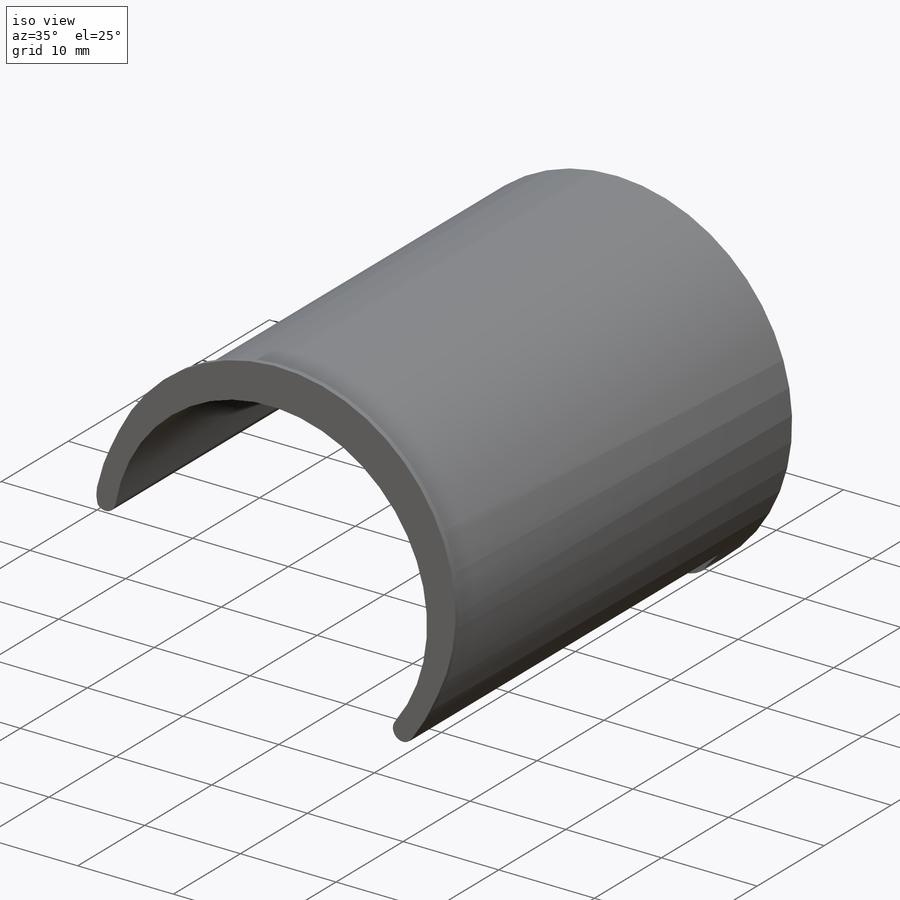
[diagram: iso view]
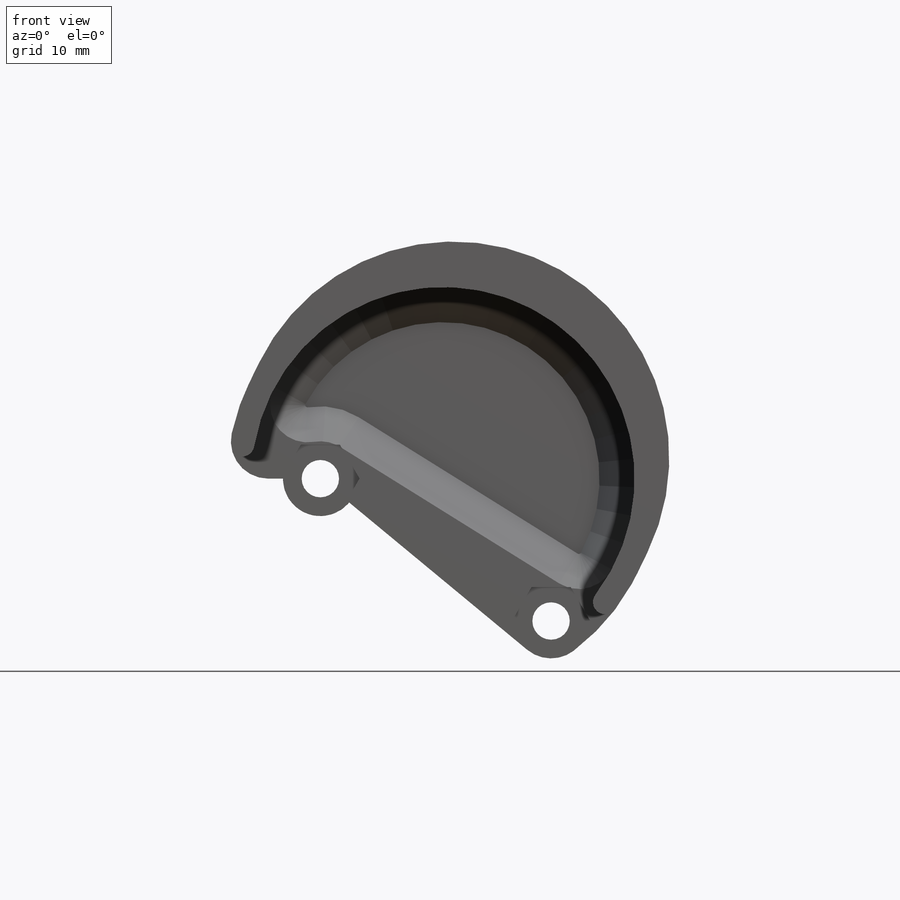
[diagram: front view]
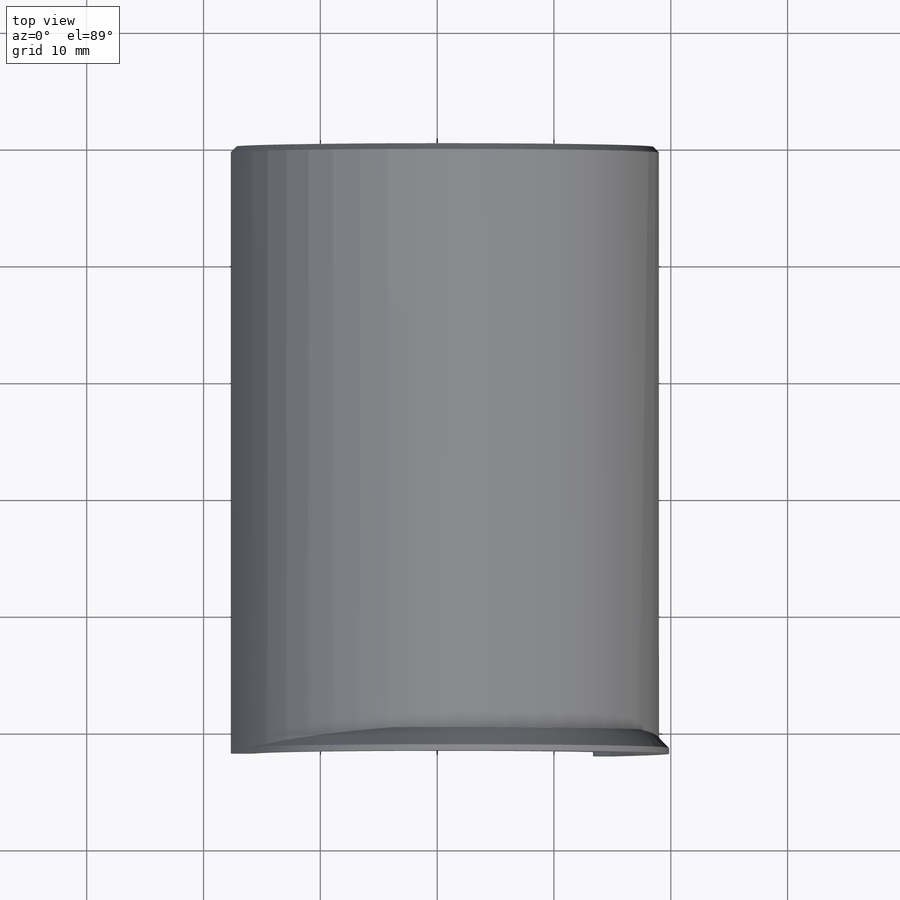
[diagram: top view]
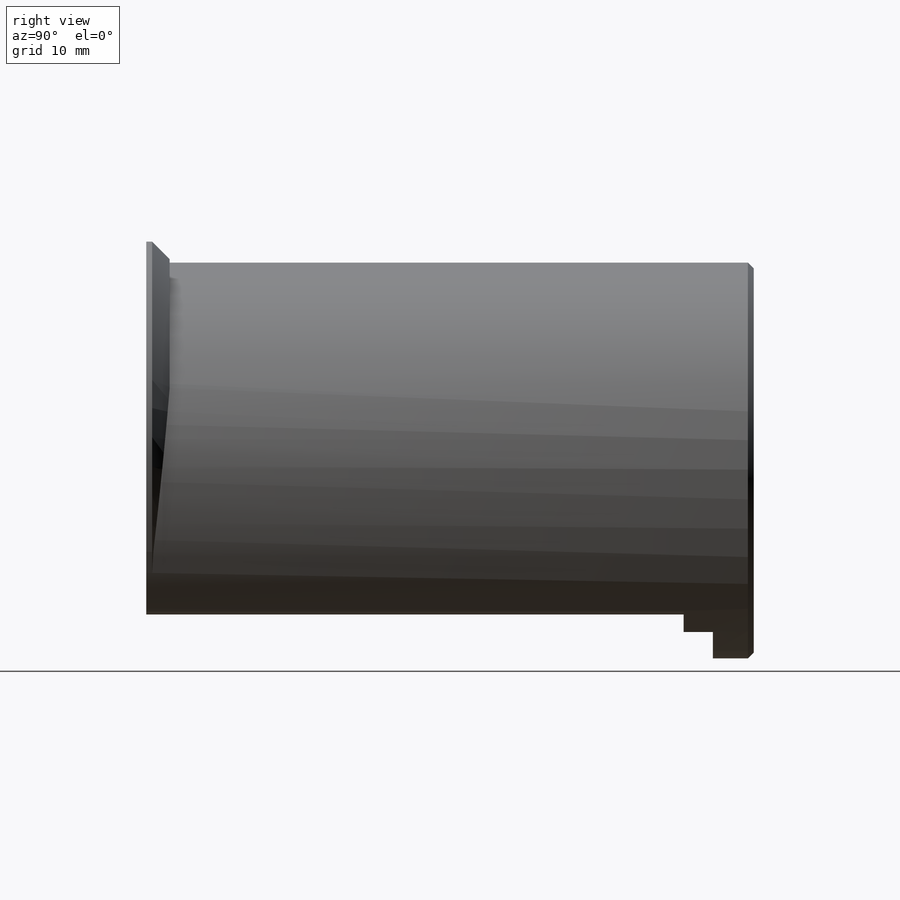
[diagram: right view]
SOLIDWORKS PART (.sldprt)
format: sldprt  version: not decoded by parser v0  size: 305,152 bytes
history: native  units: mm
features: sketch x5, cut_extrude x3, chamfer x3, extrude x2, material x1 (+13 scaffold rows collapsed)
feature tree (27):
  scaffold x13  (default folders/planes/origin — collapsed)
  material  "Material <not specified>"
  sketch  "Sketch1"  dims[c1.D1=4.2mm c1.D2=4.2mm c1.D3=4.2mm c1.D4=10.0mm c2.D3=8.0mm c2.D5=3.2mm c2.D6=37.0mm c2.D9=8.0mm c2.D1=3.2mm c2.D2=20.0mm c3.D3=97.5mm c3.D4=20.0mm c3.D2=48.75mm c3.D6=95.0mm c3.D7=~88.544407mm c4.D7=~39.603941deg c4.D8=10.5mm c4.D3=10.5mm]
  extrude  "Boss-Extrude1"  Depth=52mm
  sketch  "Sketch2"  dims[D1=2.1mm]
  cut_extrude  "Cut-Extrude1"  Depth=6mm
  sketch  "Sketch3"
  cut_extrude  "Cut-Extrude2"  Depth=2.4mm
  chamfer  "Chamfer1"  Distance=3mm Angle=45deg
  chamfer  "Chamfer2"  Distance=0.5mm Angle=45deg
  sketch  "Sketch4"  dims[D1=2.0mm]
  extrude  "Boss-Extrude2"  Depth=2mm
  chamfer  "Chamfer3"  Distance=1.5mm Angle=45deg
  sketch  "Sketch5"  dims[D1=5.8mm]
  cut_extrude  "Cut-Extrude4"  Depth=2.5mm
decode coverage: 12 of 13 modeling features carry decoded parameters
note: ~ marks probable driven/reference dimensions
note: suppression state not decoded; provenance and decode notes live in map.json
